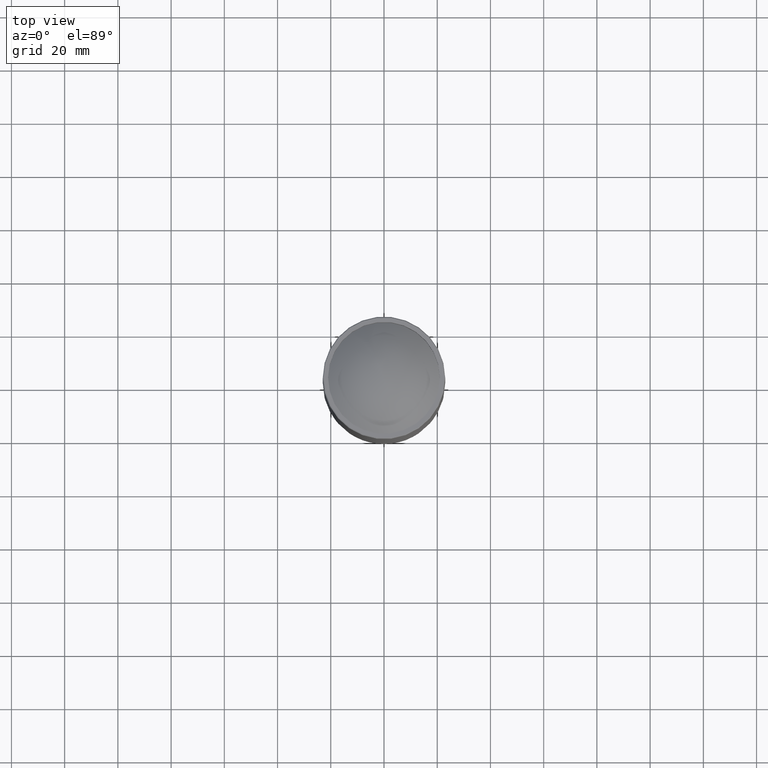
[diagram: clean part render]
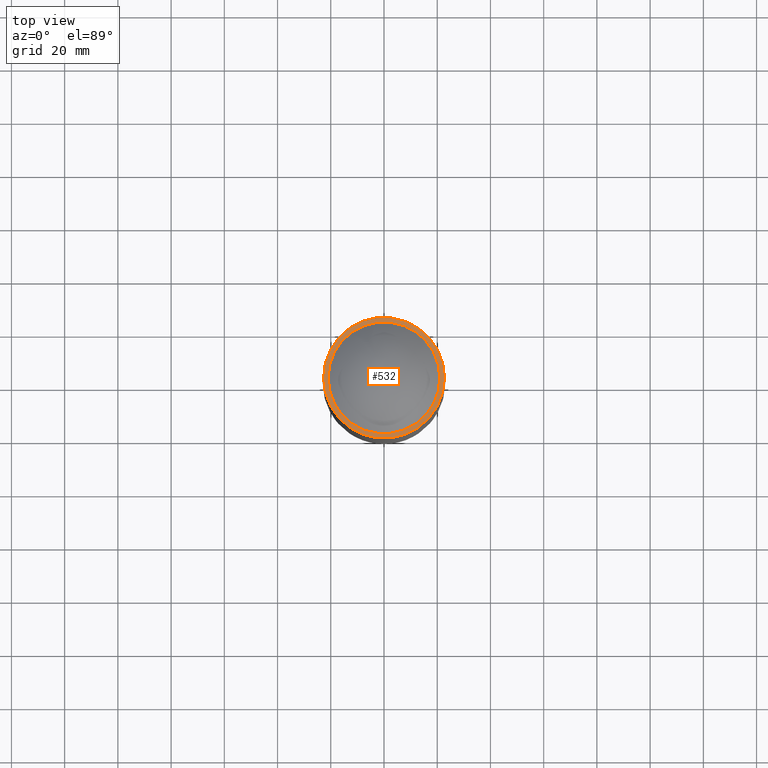
[diagram: same view with one face highlighted and labeled with its STEP entity id]
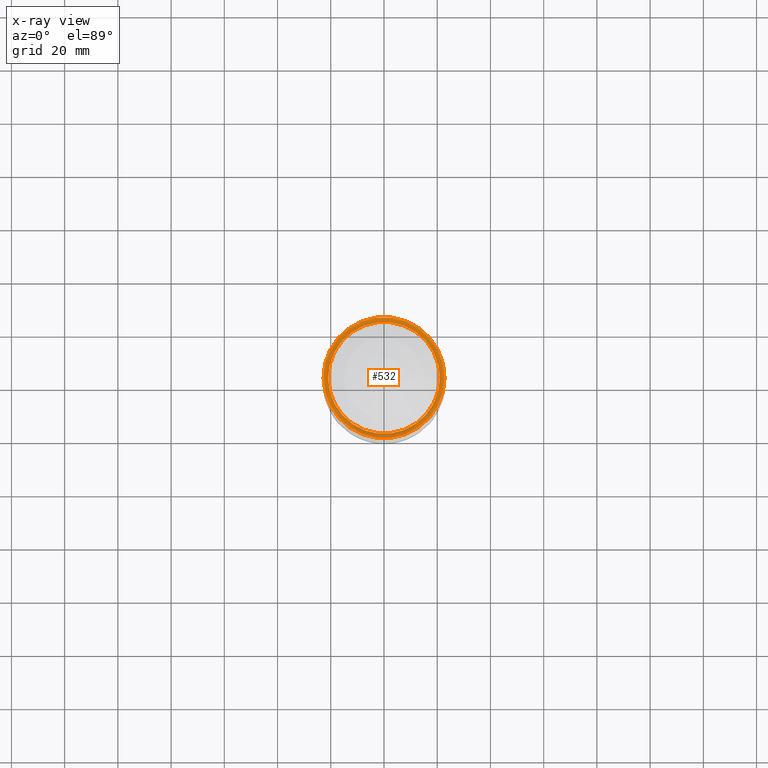
[diagram: x-ray of the same camera — body ghosted, the highlighted face saturated]
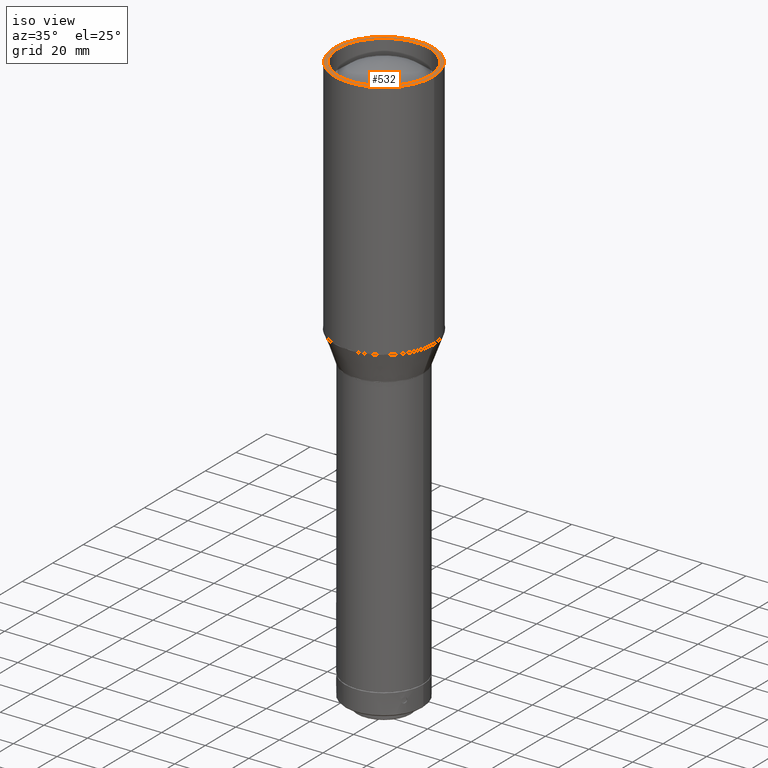
[diagram: same view with one face highlighted and labeled with its STEP entity id]
A machine part, top view. The second image highlights one B-rep face of the part: STEP entity #532.
The next image is the same camera in x-ray: the body ghosted, the highlighted face saturated — about 0% of this face is hidden behind the body in this view.
A second angle (iso view) of the same face is appended — the face is thin or edge-on in the first view.
In plain terms, the highlighted planar face has unit normal (-0, 0, -1).
Its self-contained STEP definition (entity closure, byte-faithful):
#38 = ORIENTED_EDGE ( 'NONE', *, *, #699, .F. ) ;
#56 = PLANE ( 'NONE',  #735 ) ;
#65 = DIRECTION ( 'NONE',  ( 1.000000000000000000, 0.000000000000000000, 0.000000000000000000 ) ) ;
#149 = DIRECTION ( 'NONE',  ( 0.000000000000000000, 0.000000000000000000, -1.000000000000000000 ) ) ;
#150 = EDGE_CURVE ( 'NONE', #697, #697, #341, .T. ) ;
#155 = EDGE_LOOP ( 'NONE', ( #706 ) ) ;
#341 = CIRCLE ( 'NONE', #659, 20.99999999999999645 ) ;
#411 = AXIS2_PLACEMENT_3D ( 'NONE', #1118, #149, #838 ) ;
#430 = VERTEX_POINT ( 'NONE', #691 ) ;
#436 = DIRECTION ( 'NONE',  ( 0.000000000000000000, 0.000000000000000000, 1.000000000000000000 ) ) ;
#516 = FACE_BOUND ( 'NONE', #155, .T. ) ;
#532 = ADVANCED_FACE ( 'NONE', ( #516, #671 ), #56, .F. ) ;
#558 = CIRCLE ( 'NONE', #411, 22.70000000000001705 ) ;
#590 = CARTESIAN_POINT ( 'NONE',  ( 20.99999999999999645, -1.074881586943671086E-14, -382.0000000000000000 ) ) ;
#659 = AXIS2_PLACEMENT_3D ( 'NONE', #689, #436, #65 ) ;
#671 = FACE_OUTER_BOUND ( 'NONE', #854, .T. ) ;
#689 = CARTESIAN_POINT ( 'NONE',  ( 0.000000000000000000, -1.074881586943671086E-14, -382.0000000000000000 ) ) ;
#691 = CARTESIAN_POINT ( 'NONE',  ( -22.70000000000001705, -1.074881586943671402E-14, -382.0000000000000000 ) ) ;
#697 = VERTEX_POINT ( 'NONE', #590 ) ;
#699 = EDGE_CURVE ( 'NONE', #430, #430, #558, .T. ) ;
#706 = ORIENTED_EDGE ( 'NONE', *, *, #150, .F. ) ;
#735 = AXIS2_PLACEMENT_3D ( 'NONE', #866, #1022, #1041 ) ;
#838 = DIRECTION ( 'NONE',  ( -1.000000000000000000, 0.000000000000000000, 0.000000000000000000 ) ) ;
#854 = EDGE_LOOP ( 'NONE', ( #38 ) ) ;
#866 = CARTESIAN_POINT ( 'NONE',  ( -8.561097774601000685E-16, 21.74999999999998934, -382.0000000000000000 ) ) ;
#1022 = DIRECTION ( 'NONE',  ( -1.110223024625157033E-16, 8.326672684688671588E-17, -1.000000000000000000 ) ) ;
#1041 = DIRECTION ( 'NONE',  ( -1.000000000000000000, 0.000000000000000000, 1.110223024625157033E-16 ) ) ;
#1118 = CARTESIAN_POINT ( 'NONE',  ( 0.000000000000000000, -1.074881586943671402E-14, -382.0000000000000000 ) ) ;